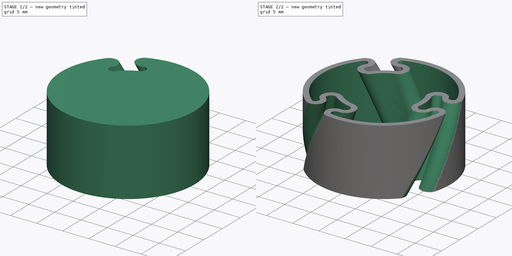
[diagram: build sequence overview — one tinted view per stage of 2, left to right]
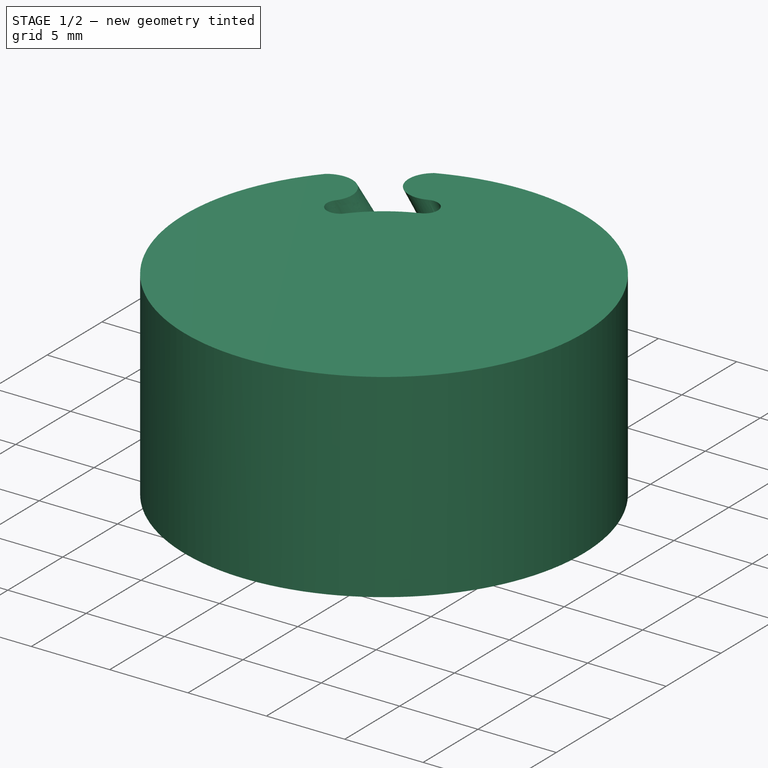
[diagram: stage 1 of 2 — iso view after this stage's code; geometry added in this stage tinted green]
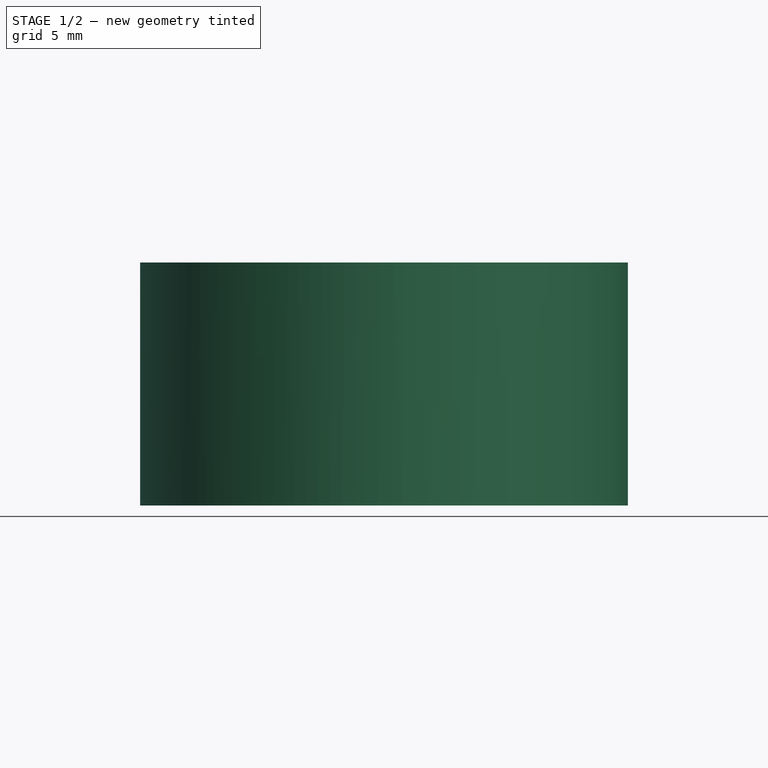
[diagram: stage 1 of 2 — front view after this stage's code; geometry added in this stage tinted green]
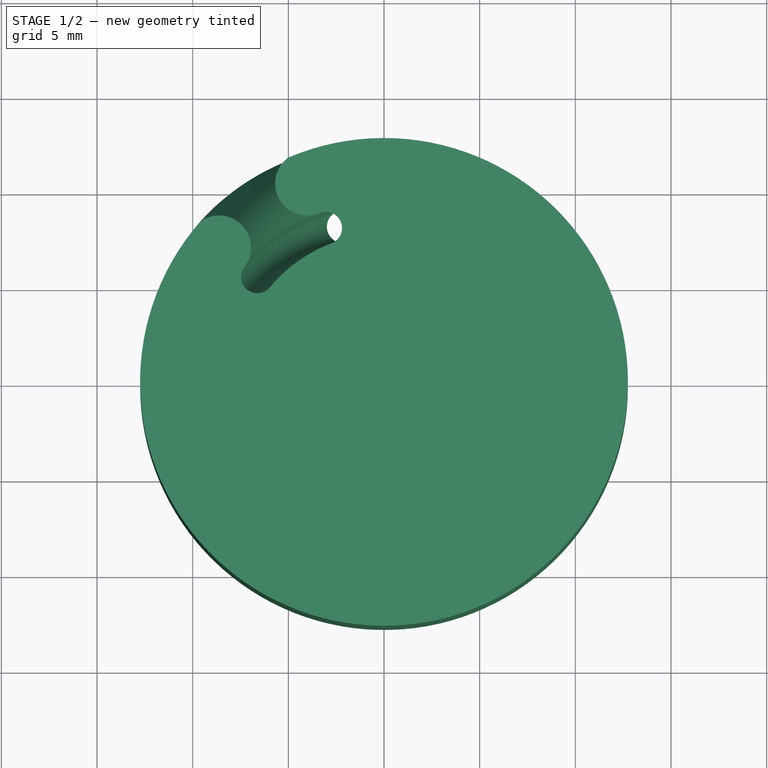
[diagram: stage 1 of 2 — top view after this stage's code; geometry added in this stage tinted green]
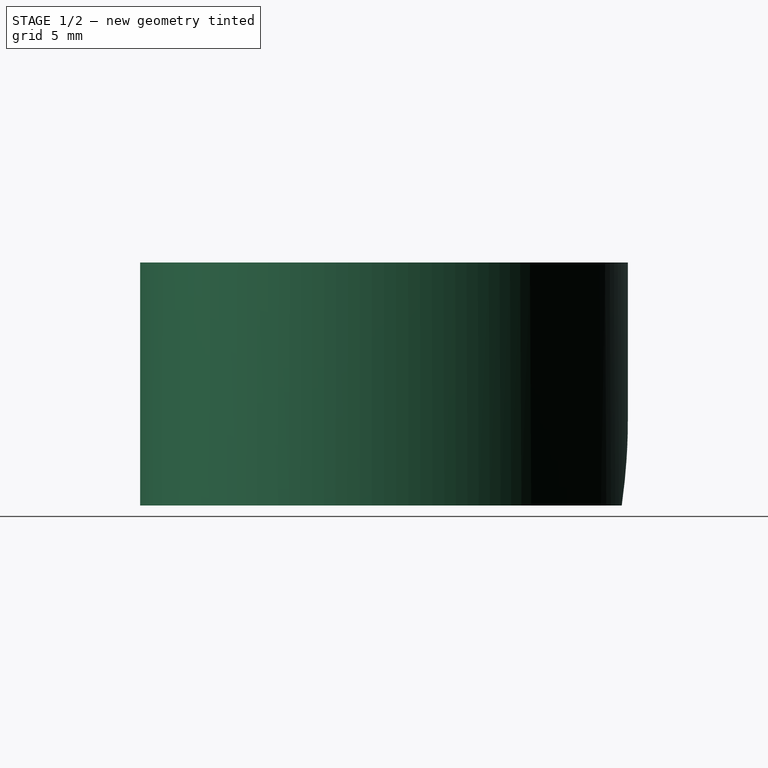
[diagram: stage 1 of 2 — right view after this stage's code; geometry added in this stage tinted green]
FCSTD DOCUMENT  (FreeCAD 0.21R33771 (Git))
Label: ex98
License: All rights reserved
LicenseURL: https://en.wikipedia.org/wiki/All_rights_reserved
objects: Sketcher::SketchObject×2, PartDesign::Pad×1, PartDesign::SubtractiveHelix×1, PartDesign::PolarPattern×1, PartDesign::Thickness×1, PartDesign::Body×1
note: 10 computed .brp shape members not serialized (recipe doc carries the construction recipe); baked Part::Feature solids carry a one-line shape summary decoded from their .brp

FEATURE [Sketcher::SketchObject] Sketch
  FullyConstrained = true
  MapMode = 5
  Support = -> [XY_Plane001]
  sketch-geometry (1):
    g0: Circle CenterX=0 CenterY=0 CenterZ=0 NormalX=0 NormalY=0 NormalZ=1 AngleXU=0 Radius=12.75
  constraints (2):
    c: Coincident(g0,g-1)
    c: Radius(g0) = 12.75
FEATURE [PartDesign::Pad] Pad
  Direction = (0,0,1)
  Length = 12.7
  Length2 = 10
  Profile = -> Sketch
  ReferenceAxis = -> Sketch [N_Axis]
  Type = 0
FEATURE [Sketcher::SketchObject] Sketch001
  ExternalGeometry = -> [Pad]
  FullyConstrained = false
  MapMode = 5
  Support = -> [XY_Plane001]
  sketch-geometry (6):
    g0: ArcOfCircle CenterX=0 CenterY=0 CenterZ=0 NormalX=0 NormalY=0 NormalZ=1 AngleXU=0 Radius=7.75 StartAngle=1.30443 EndAngle=1.82183
    g1: ArcOfCircle CenterX=-2.13626 CenterY=8.33045 CenterZ=0 NormalX=0 NormalY=0 NormalZ=1 AngleXU=0 Radius=0.85 StartAngle=1.8572 EndAngle=4.96342
    g2: ArcOfCircle CenterX=2.26374 CenterY=8.29671 CenterZ=0 NormalX=0 NormalY=0 NormalZ=1 AngleXU=0 Radius=0.85 StartAngle=4.44602 EndAngle=7.61947
    g3: ArcOfCircle CenterX=-2.84955 CenterY=10.7525 CenterZ=0 NormalX=0 NormalY=0 NormalZ=1 AngleXU=0 Radius=1.67489 StartAngle=4.99879 EndAngle=7.85425
    g4: ArcOfCircle CenterX=2.85045 CenterY=10.7525 CenterZ=0 NormalX=0 NormalY=0 NormalZ=1 AngleXU=0 Radius=1.67489 StartAngle=1.57107 EndAngle=4.47788
    g5: ArcOfCircle CenterX=0 CenterY=12.9757 CenterZ=0 NormalX=0 NormalY=0 NormalZ=1 AngleXU=0 Radius=2.90227 StartAngle=6.09311 EndAngle=9.61486
  constraints (18):
    c: Tangent(g1,g0) = 1.5708
    c: Tangent(g2,g0) = 1.5708
    c: Coincident(g0,g-3)
    c: PointOnObject(g4,g-3)
    c: Tangent(g3,g1) = 1.5708
    c: Equal(g1,g2)
    c: Tangent(g4,g2) = 1.5708
    c: Equal(g3,g4)
    c: DistanceX(g1,g2) = 4.4
    c: Radius(g2) = 0.85
    c: DistanceX(g3,g4) = 5.7
    c: Radius(g0) = 7.75
    c: Symmetric(g3,g4,g-2)
    c: DistanceX(g-2,g0) = 2.04
    c: Horizontal(g3,g4)
    c: PointOnObject(g5,g-2)
    c: Coincident(g5,g3)
    c: PointOnObject(g5,g-3)
FEATURE [PartDesign::SubtractiveHelix] SubtractiveHelix
  Angle = 0
  Axis = (0,0,1)
  Base = (0,0,0)
  BaseFeature = -> Pad
  Growth = 0
  HasBeenEdited = true
  Height = 12.7
  LeftHanded = false
  Mode = 0
  Outside = false
  Pitch = 127
  Profile = -> Sketch001
  ReferenceAxis = -> Sketch001 [N_Axis]
  Turns = 0.1
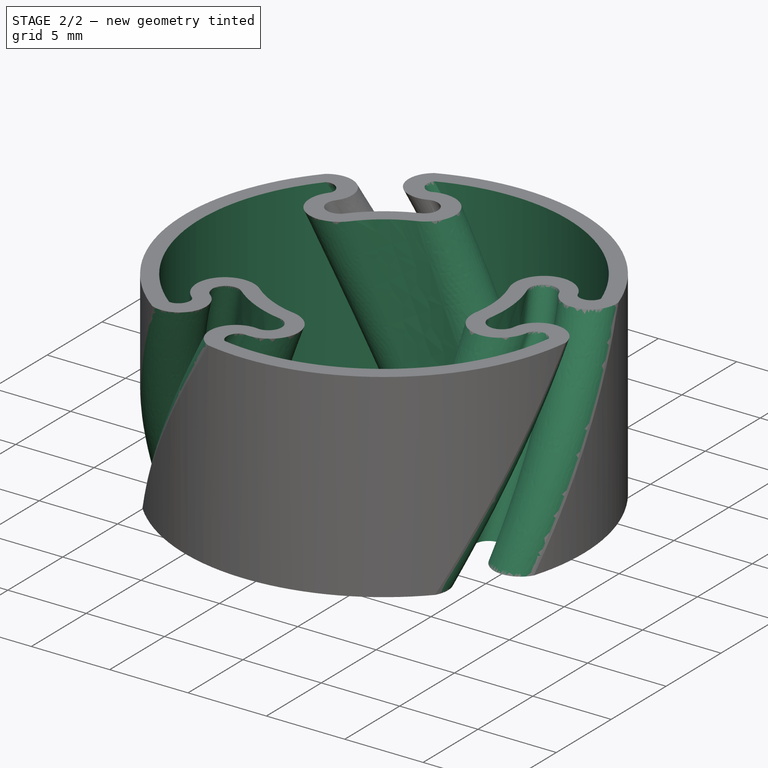
[diagram: stage 2 of 2 — iso view after this stage's code; geometry added in this stage tinted green]
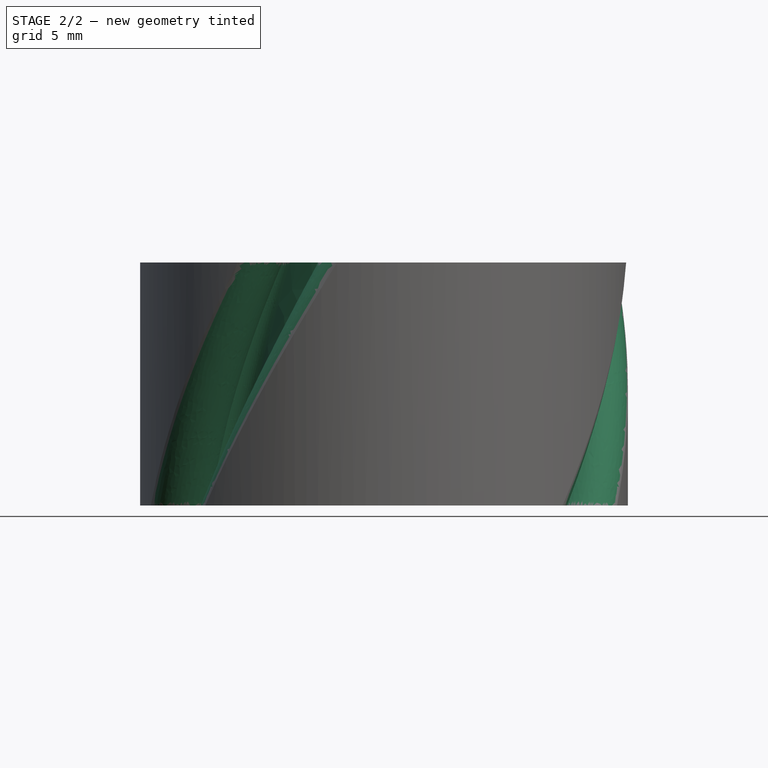
[diagram: stage 2 of 2 — front view after this stage's code; geometry added in this stage tinted green]
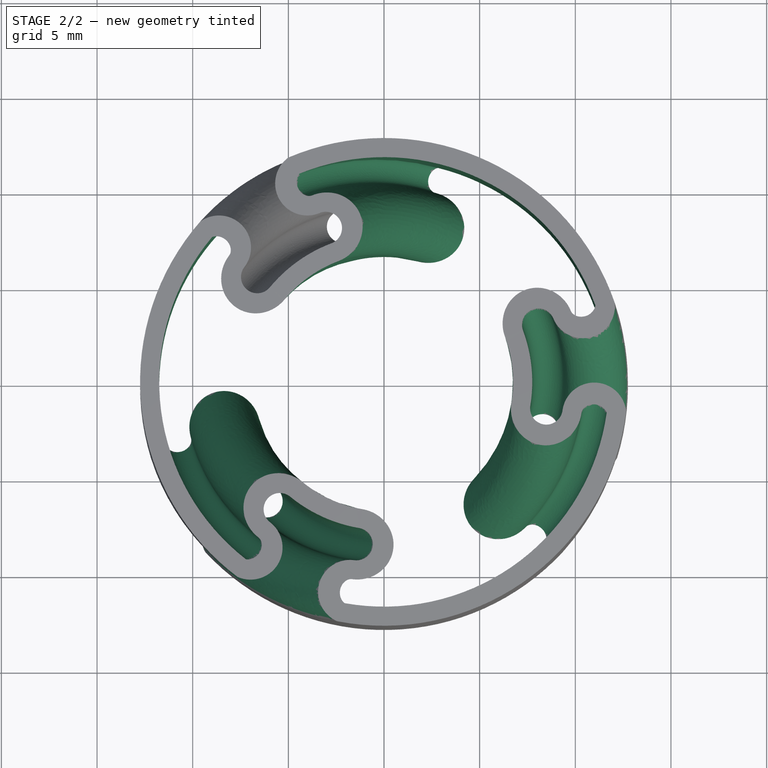
[diagram: stage 2 of 2 — top view after this stage's code; geometry added in this stage tinted green]
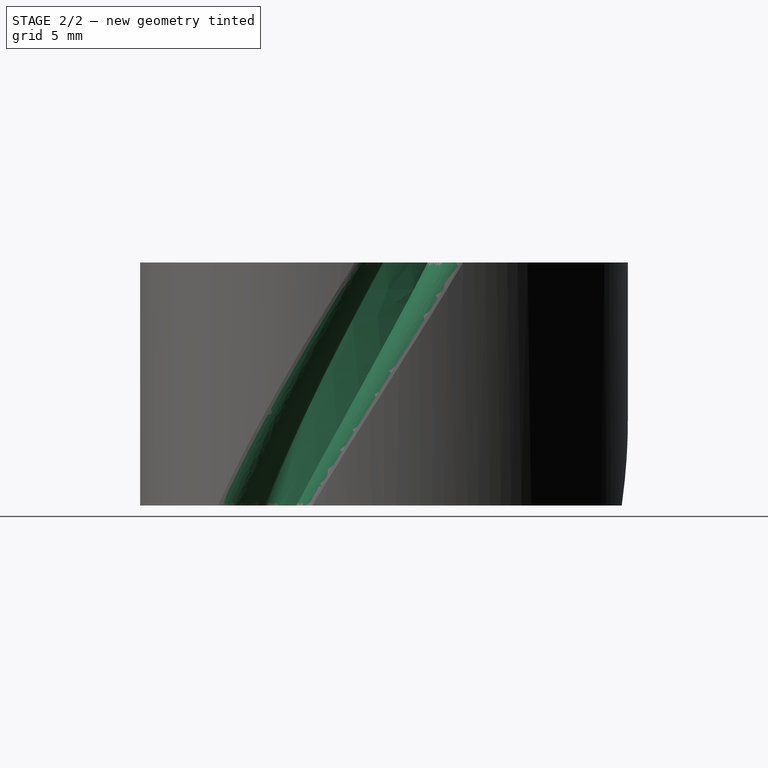
[diagram: stage 2 of 2 — right view after this stage's code; geometry added in this stage tinted green]
FEATURE [PartDesign::PolarPattern] PolarPattern
  Angle = 360
  Axis = -> Sketch001 [N_Axis]
  BaseFeature = -> SubtractiveHelix
  Occurrences = 3
  Originals = -> [SubtractiveHelix]
FEATURE [PartDesign::Thickness] Thickness
  Base = -> PolarPattern [Face2,Face4]
  BaseFeature = -> PolarPattern
  Intersection = false
  Join = 0
  Mode = 0
  Reversed = true
  SupportTransform = false
  Value = 1
FEATURE [PartDesign::Body] Body001
  Group = -> [Sketch,Pad,Sketch001,SubtractiveHelix,PolarPattern,Thickness]
  Origin = -> Origin001
  Tip = -> Thickness
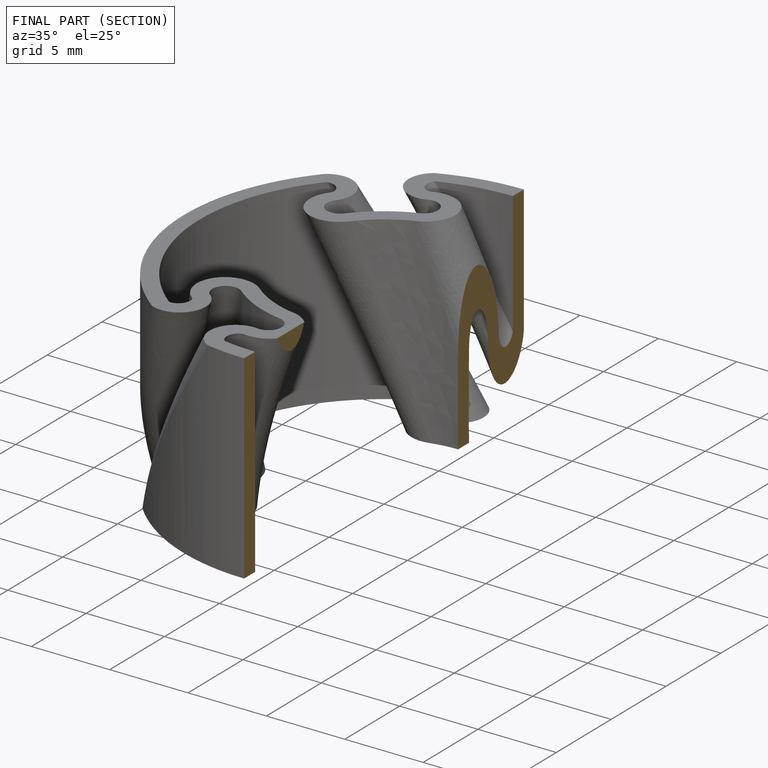
[diagram: finished part — half-section view (interior)]
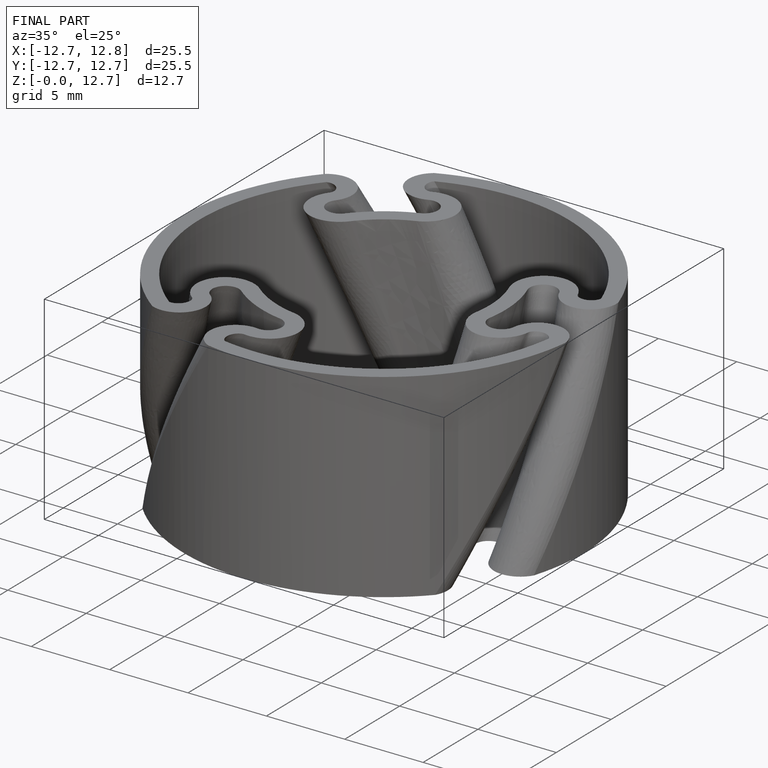
[diagram: finished part — iso view with bounding-box wireframe]
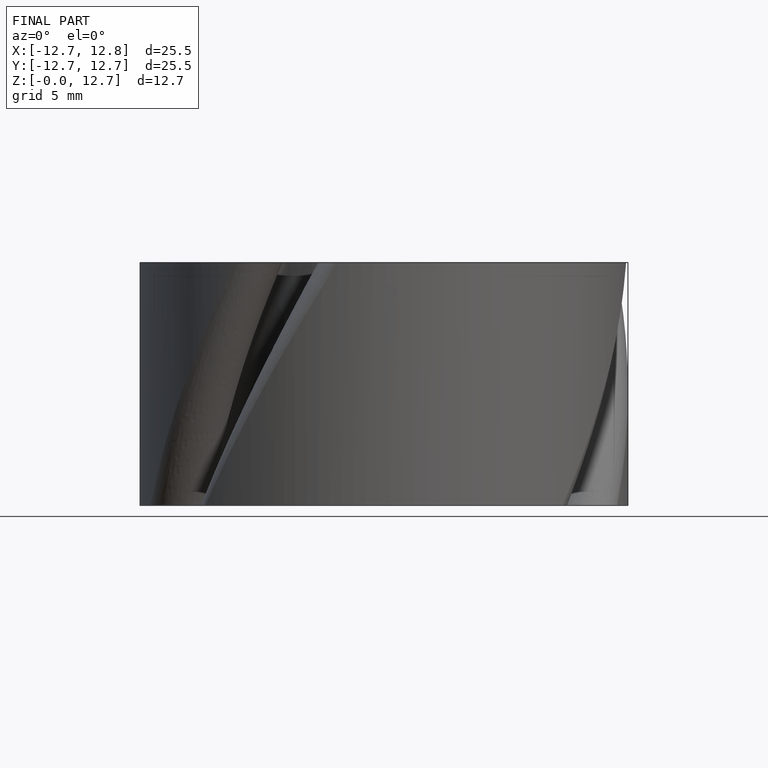
[diagram: finished part — front view with bounding-box wireframe]
